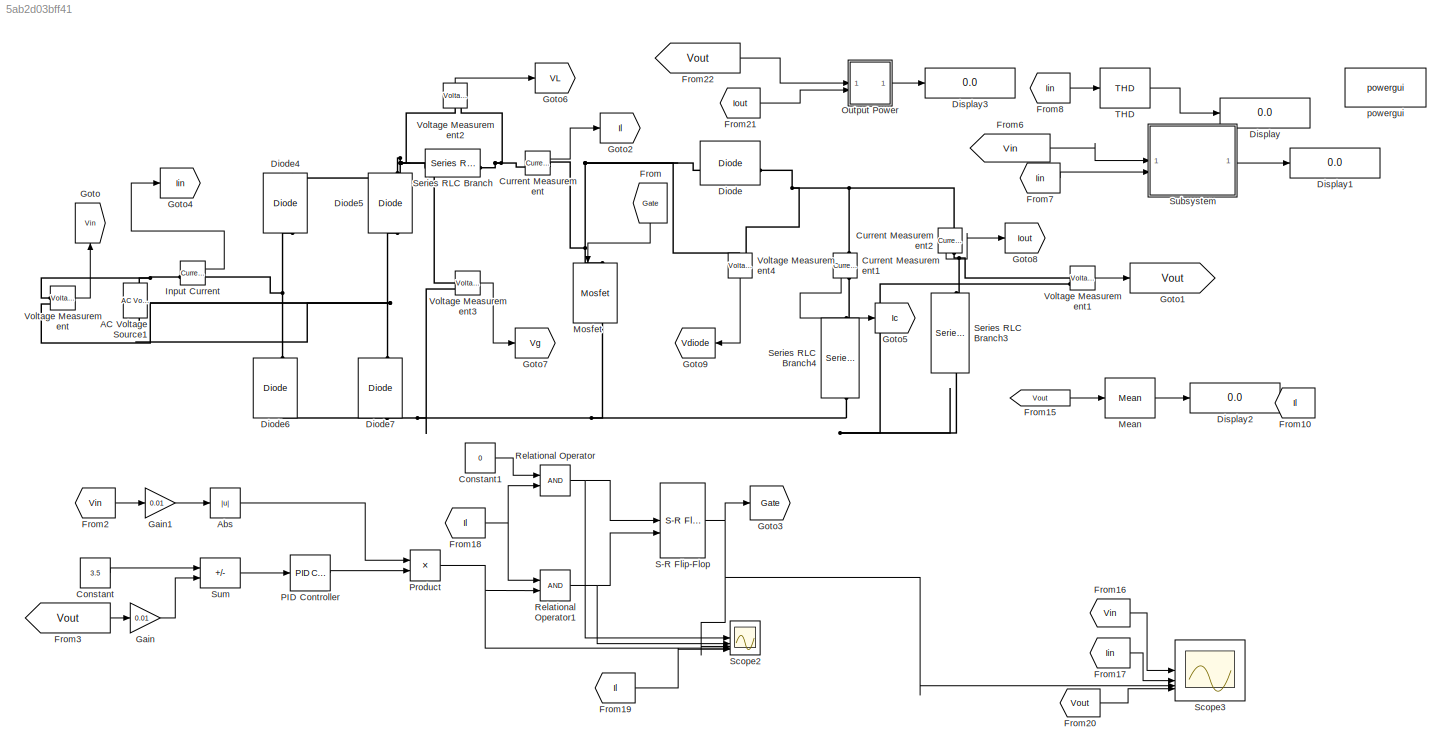
MODEL slx_5ab2d03bff41
KIND model
CONFIG AbsTol = auto
CONFIG EnableMultiTasking = off
CONFIG FixedStep = auto
CONFIG MaxStep = auto
CONFIG MinStep = auto
CONFIG RelTol = 1e-3
CONFIG SampleTimeConstraint = Unconstrained
CONFIG SolverName = VariableStepAuto
CONFIG StartTime = 0.0
CONFIG StopTime = 0.3
BLOCK [Reference] AC Voltage Source1  REF=spsACVoltageSourceLib/AC Voltage Source
  LibrarySourceBlock = sps_lib/Sources/AC Voltage Source
  SourceBlock = spsACVoltageSourceLib/AC Voltage Source
  SourceType = AC Voltage Source
BLOCK [Abs] Abs
  SaturateOnIntegerOverflow = off
BLOCK [Constant] Constant
  Value = 3.5
BLOCK [Constant] Constant1
  Value = 0
BLOCK [Reference] Current Measurement  REF=spsCurrentMeasurementLib/Current Measurement
  LibrarySourceBlock = sps_lib/Sensors and Measurements/Current Measurement
  SourceBlock = spsCurrentMeasurementLib/Current Measurement
  SourceType = Current Measurement
  UserDataPersistent = on
BLOCK [Reference] Current Measurement1  REF=spsCurrentMeasurementLib/Current Measurement
  LibrarySourceBlock = sps_lib/Sensors and Measurements/Current Measurement
  NameLocation = left
  SourceBlock = spsCurrentMeasurementLib/Current Measurement
  SourceType = Current Measurement
  UserDataPersistent = on
BLOCK [Reference] Current Measurement2  REF=spsCurrentMeasurementLib/Current Measurement
  LibrarySourceBlock = sps_lib/Sensors and Measurements/Current Measurement
  NameLocation = left
  SourceBlock = spsCurrentMeasurementLib/Current Measurement
  SourceType = Current Measurement
  UserDataPersistent = on
BLOCK [Reference] Diode  REF=spsDiodeLib/Diode
  LibrarySourceBlock = sps_lib/Power Electronics/Diode
  SourceBlock = spsDiodeLib/Diode
  SourceType = Diode
BLOCK [Reference] Diode4  REF=spsDiodeLib/Diode
  LibrarySourceBlock = sps_lib/Power Electronics/Diode
  NameLocation = right
  SourceBlock = spsDiodeLib/Diode
  SourceType = Diode
BLOCK [Reference] Diode5  REF=spsDiodeLib/Diode
  LibrarySourceBlock = sps_lib/Power Electronics/Diode
  NameLocation = right
  SourceBlock = spsDiodeLib/Diode
  SourceType = Diode
BLOCK [Reference] Diode6  REF=spsDiodeLib/Diode
  LibrarySourceBlock = sps_lib/Power Electronics/Diode
  NameLocation = right
  SourceBlock = spsDiodeLib/Diode
  SourceType = Diode
BLOCK [Reference] Diode7  REF=spsDiodeLib/Diode
  LibrarySourceBlock = sps_lib/Power Electronics/Diode
  NameLocation = right
  SourceBlock = spsDiodeLib/Diode
  SourceType = Diode
BLOCK [Display] Display
  Decimation = 1
BLOCK [Display] Display1
  Decimation = 1
BLOCK [Display] Display2
  Decimation = 1
BLOCK [Display] Display3
  Decimation = 1
BLOCK [From] From
  GotoTag = Gate
  NameLocation = left
BLOCK [From] From10
  Commented = on
  GotoTag = Il
BLOCK [From] From15
  GotoTag = Vout
BLOCK [From] From16
  GotoTag = Vin
BLOCK [From] From17
  GotoTag = Iin
BLOCK [From] From18
  GotoTag = Il
BLOCK [From] From19
  GotoTag = Il
BLOCK [From] From2
  GotoTag = Vin
BLOCK [From] From20
  GotoTag = Vout
BLOCK [From] From21
  GotoTag = Iout
BLOCK [From] From22
  GotoTag = Vout
BLOCK [From] From3
  GotoTag = Vout
BLOCK [From] From6
  GotoTag = Vin
BLOCK [From] From7
  GotoTag = Iin
BLOCK [From] From8
  GotoTag = Iin
BLOCK [Gain] Gain
  Gain = 0.01
BLOCK [Gain] Gain1
  Gain = 0.01
BLOCK [Goto] Goto
  GotoTag = Vin
  NameLocation = right
BLOCK [Goto] Goto1
  GotoTag = Vout
BLOCK [Goto] Goto2
  GotoTag = Il
BLOCK [Goto] Goto3
  GotoTag = Gate
BLOCK [Goto] Goto4
  GotoTag = Iin
BLOCK [Goto] Goto5
  GotoTag = Ic
BLOCK [Goto] Goto6
  GotoTag = VL
BLOCK [Goto] Goto7
  GotoTag = Vg
BLOCK [Goto] Goto8
  GotoTag = Iout
BLOCK [Goto] Goto9
  GotoTag = Vdiode
  NameLocation = top
BLOCK [Reference] Input Current  REF=spsCurrentMeasurementLib/Current Measurement
  LibrarySourceBlock = sps_lib/Sensors and Measurements/Current Measurement
  SourceBlock = spsCurrentMeasurementLib/Current Measurement
  SourceType = Current Measurement
  UserDataPersistent = on
BLOCK [Reference] Mean  REF=spsMeanLib/Mean
  LibrarySourceBlock = sps_lib/Sensors and Measurements/Mean
  SourceBlock = spsMeanLib/Mean
  SourceType = Mean
BLOCK [Reference] Mosfet  REF=spsMosfetLib/Mosfet
  LibrarySourceBlock = sps_lib/Power Electronics/Mosfet
  NameLocation = left
  SourceBlock = spsMosfetLib/Mosfet
  SourceType = Mosfet
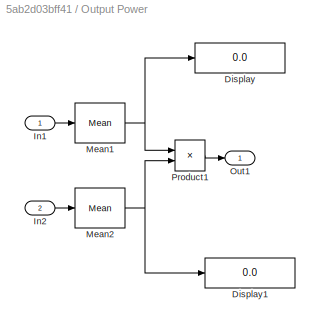
BLOCK [SubSystem] Output Power
BLOCK [Display] Output Power/Display
  Decimation = 1
BLOCK [Display] Output Power/Display1
  Decimation = 1
BLOCK [Inport] Output Power/In1
BLOCK [Inport] Output Power/In2
  Port = 2
BLOCK [Reference] Output Power/Mean1  REF=spsMeanLib/Mean
  LibrarySourceBlock = sps_lib/Sensors and Measurements/Mean
  SourceBlock = spsMeanLib/Mean
  SourceType = Mean
BLOCK [Reference] Output Power/Mean2  REF=spsMeanLib/Mean
  LibrarySourceBlock = sps_lib/Sensors and Measurements/Mean
  SourceBlock = spsMeanLib/Mean
  SourceType = Mean
BLOCK [Outport] Output Power/Out1
BLOCK [Product] Output Power/Product1
BLOCK [Reference] PID Controller  REF=slpidlib/PID Controller
  LibrarySourceBlock = simulink/Continuous/PID Controller
  SourceBlock = slpidlib/PID Controller
  SourceType = PID 1dof
BLOCK [Product] Product
BLOCK [RelationalOperator] Relational Operator
  InputSameDT = off
  OutDataTypeStr = boolean
  RndMeth = Simplest
BLOCK [RelationalOperator] Relational Operator1
  InputSameDT = off
  OutDataTypeStr = boolean
  RndMeth = Simplest
BLOCK [Reference] S-R Flip-Flop  REF=simulink_extras/Flip Flops/S-R
Flip-Flop
  SourceBlock = simulink_extras/Flip Flops/S-R\nFlip-Flop
  SourceType = SRFlipFlop
BLOCK [Scope] Scope2
  Floating = off
  NumInputPorts = 5
  ScopeSpecificationString = Simulink.scopes.TimeScopeBlockCfg('CurrentConfiguration', extmgr.ConfigurationSet(extmgr.Configuration('Core','General UI',true),extmgr.Configuration('Core','Source UI',true),extmgr.Configuration('Sources','WiredSimulink',true,'DataLoggingVariableName','ScopeData3'),extmgr.Configuration('Visuals','Time Domain',true,'SerializedDisplays',{struct('MinYLimReal','-0.47641','MaxYLimReal','4.15366','YLab...<+2258ch>
BLOCK [Scope] Scope3
  Floating = off
  NumInputPorts = 4
  ScopeSpecificationString = Simulink.scopes.TimeScopeBlockCfg('CurrentConfiguration', extmgr.ConfigurationSet(extmgr.Configuration('Core','General UI',true),extmgr.Configuration('Core','Source UI',true),extmgr.Configuration('Sources','WiredSimulink',true),extmgr.Configuration('Visuals','Time Domain',true,'SerializedDisplays',{struct('MinYLimReal','-41.51354','MaxYLimReal','29.41043','YLabelReal','','MinYLimMag','0.00000','Ma...<+1629ch>
BLOCK [Reference] Series RLC Branch  REF=spsSeriesRLCBranchLib/Series RLC Branch
  LibrarySourceBlock = sps_lib/Passives/Series RLC Branch
  SourceBlock = spsSeriesRLCBranchLib/Series RLC Branch
  SourceType = Series RLC Branch
BLOCK [Reference] Series RLC Branch3  REF=spsSeriesRLCBranchLib/Series RLC Branch
  LibrarySourceBlock = sps_lib/Passives/Series RLC Branch
  NameLocation = left
  SourceBlock = spsSeriesRLCBranchLib/Series RLC Branch
  SourceType = Series RLC Branch
BLOCK [Reference] Series RLC Branch4  REF=spsSeriesRLCBranchLib/Series RLC Branch
  LibrarySourceBlock = sps_lib/Passives/Series RLC Branch
  NameLocation = left
  SourceBlock = spsSeriesRLCBranchLib/Series RLC Branch
  SourceType = Series RLC Branch
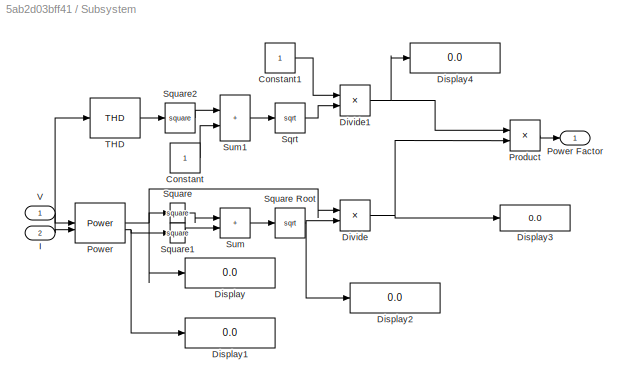
BLOCK [SubSystem] Subsystem
BLOCK [Constant] Subsystem/Constant
  SampleTime = -1
BLOCK [Constant] Subsystem/Constant1
  SampleTime = -1
BLOCK [Display] Subsystem/Display
  Decimation = 1
BLOCK [Display] Subsystem/Display1
  Decimation = 1
BLOCK [Display] Subsystem/Display2
  Decimation = 1
BLOCK [Display] Subsystem/Display3
  Decimation = 1
BLOCK [Display] Subsystem/Display4
  Decimation = 1
BLOCK [Product] Subsystem/Divide
  Inputs = */
BLOCK [Product] Subsystem/Divide1
  Inputs = */
BLOCK [Inport] Subsystem/I
  Port = 2
BLOCK [Reference] Subsystem/Power  REF=spsPowerLib/Power
  LibrarySourceBlock = sps_lib/Sensors and Measurements/Power
  SourceBlock = spsPowerLib/Power
  SourceType = Power
BLOCK [Outport] Subsystem/Power Factor
BLOCK [Product] Subsystem/Product
BLOCK [Sqrt] Subsystem/Sqrt
BLOCK [Math] Subsystem/Square
  Operator = square
BLOCK [Sqrt] Subsystem/Square Root
BLOCK [Math] Subsystem/Square1
  Operator = square
BLOCK [Math] Subsystem/Square2
  Operator = square
BLOCK [Sum] Subsystem/Sum
  IconShape = rectangular
  Inputs = |++
BLOCK [Sum] Subsystem/Sum1
  IconShape = rectangular
  Inputs = |++
BLOCK [Reference] Subsystem/THD  REF=spsTHDLib/THD
  LibrarySourceBlock = sps_lib/Sensors and Measurements/THD
  SourceBlock = spsTHDLib/THD
  SourceType = THD
BLOCK [Inport] Subsystem/V
BLOCK [Sum] Sum
  IconShape = rectangular
  Inputs = |+-
BLOCK [Reference] THD  REF=spsTHDLib/THD
  LibrarySourceBlock = sps_lib/Sensors and Measurements/THD
  SourceBlock = spsTHDLib/THD
  SourceType = THD
BLOCK [Reference] Voltage Measurement  REF=spsVoltageMeasurementLib/Voltage Measurement
  LibrarySourceBlock = sps_lib/Sensors and Measurements/Voltage Measurement
  SourceBlock = spsVoltageMeasurementLib/Voltage Measurement
  SourceType = Voltage Measurement
  UserDataPersistent = on
BLOCK [Reference] Voltage Measurement1  REF=spsVoltageMeasurementLib/Voltage Measurement
  LibrarySourceBlock = sps_lib/Sensors and Measurements/Voltage Measurement
  SourceBlock = spsVoltageMeasurementLib/Voltage Measurement
  SourceType = Voltage Measurement
  UserDataPersistent = on
BLOCK [Reference] Voltage Measurement2  REF=spsVoltageMeasurementLib/Voltage Measurement
  LibrarySourceBlock = sps_lib/Sensors and Measurements/Voltage Measurement
  NameLocation = right
  SourceBlock = spsVoltageMeasurementLib/Voltage Measurement
  SourceType = Voltage Measurement
  UserDataPersistent = on
BLOCK [Reference] Voltage Measurement3  REF=spsVoltageMeasurementLib/Voltage Measurement
  LibrarySourceBlock = sps_lib/Sensors and Measurements/Voltage Measurement
  SourceBlock = spsVoltageMeasurementLib/Voltage Measurement
  SourceType = Voltage Measurement
  UserDataPersistent = on
BLOCK [Reference] Voltage Measurement4  REF=spsVoltageMeasurementLib/Voltage Measurement
  LibrarySourceBlock = sps_lib/Sensors and Measurements/Voltage Measurement
  NameLocation = left
  SourceBlock = spsVoltageMeasurementLib/Voltage Measurement
  SourceType = Voltage Measurement
  UserDataPersistent = on
BLOCK [Reference] powergui  REF=sps_lib/powergui
  LibrarySourceBlock = sps_lib/powergui
  Priority = 1
  SourceBlock = sps_lib/powergui
  SourceType = PSB option menu block
LINE Abs:1 -> Product:1
LINE Constant1:1 -> Relational Operator:1
LINE Constant:1 -> Sum:1
LINE Current Measurement1:1 -> Goto5:1
LINE Current Measurement2:1 -> Goto8:1
LINE Current Measurement:1 -> Goto2:1
LINE From15:1 -> Mean:1
LINE From16:1 -> Scope3:1
LINE From17:1 -> Scope3:2
NET From18:1 -> Relational Operator1:1, Relational Operator:2
LINE From19:1 -> Scope2:5
LINE From20:1 -> Scope3:4
LINE From21:1 -> Output Power:2
LINE From22:1 -> Output Power:1
LINE From2:1 -> Gain1:1
LINE From3:1 -> Gain:1
LINE From6:1 -> Subsystem:1
LINE From7:1 -> Subsystem:2
LINE From8:1 -> THD:1
LINE From:1 -> Mosfet:1
LINE Gain1:1 -> Abs:1
LINE Gain:1 -> Sum:2
LINE Input Current:1 -> Goto4:1
LINE Mean:1 -> Display2:1
LINE Output Power/In1:1 -> Output Power/Mean1:1
LINE Output Power/In2:1 -> Output Power/Mean2:1
NET Output Power/Mean1:1 -> Output Power/Display:1, Output Power/Product1:1
NET Output Power/Mean2:1 -> Output Power/Display1:1, Output Power/Product1:2
LINE Output Power/Product1:1 -> Output Power/Out1:1
LINE Output Power:1 -> Display3:1
LINE PID Controller:1 -> Product:2
NET Product:1 -> Relational Operator1:2, Scope2:4
NET Relational Operator1:1 -> S-R Flip-Flop:2, Scope2:2
NET Relational Operator:1 -> S-R Flip-Flop:1, Scope2:1
NET S-R Flip-Flop:1 -> Goto3:1, Scope2:3, Scope3:3
LINE Subsystem/Constant1:1 -> Subsystem/Divide1:1
LINE Subsystem/Constant:1 -> Subsystem/Sum1:2
NET Subsystem/Divide1:1 -> Subsystem/Display4:1, Subsystem/Product:1
NET Subsystem/Divide:1 -> Subsystem/Display3:1, Subsystem/Product:2
NET Subsystem/I:1 -> Subsystem/Power:2, Subsystem/THD:1
NET Subsystem/Power:1 -> Subsystem/Display:1, Subsystem/Divide:1, Subsystem/Square:1
NET Subsystem/Power:2 -> Subsystem/Display1:1, Subsystem/Square1:1
LINE Subsystem/Product:1 -> Subsystem/Power Factor:1
LINE Subsystem/Sqrt:1 -> Subsystem/Divide1:2
NET Subsystem/Square Root:1 -> Subsystem/Display2:1, Subsystem/Divide:2
LINE Subsystem/Square1:1 -> Subsystem/Sum:2
LINE Subsystem/Square2:1 -> Subsystem/Sum1:1
LINE Subsystem/Square:1 -> Subsystem/Sum:1
LINE Subsystem/Sum1:1 -> Subsystem/Sqrt:1
LINE Subsystem/Sum:1 -> Subsystem/Square Root:1
LINE Subsystem/THD:1 -> Subsystem/Square2:1
LINE Subsystem/V:1 -> Subsystem/Power:1
LINE Subsystem:1 -> Display1:1
LINE Sum:1 -> PID Controller:1
LINE THD:1 -> Display:1
LINE Voltage Measurement1:1 -> Goto1:1
LINE Voltage Measurement2:1 -> Goto6:1
LINE Voltage Measurement3:1 -> Goto7:1
LINE Voltage Measurement4:1 -> Goto9:1
LINE Voltage Measurement:1 -> Goto:1
PNET net1: AC Voltage Source1:LConn1 -- Diode5:LConn1 -- Diode7:RConn1 -- Voltage Measurement:LConn2
PNET net2: AC Voltage Source1:RConn1 -- Input Current:LConn1 -- Voltage Measurement:LConn1
PNET net3: Current Measurement1:LConn1 -- Current Measurement2:LConn1 -- Diode:RConn1 -- Voltage Measurement4:LConn2
PLINE Current Measurement1:RConn1 -- Series RLC Branch4:LConn1
PNET net4: Current Measurement2:RConn1 -- Series RLC Branch3:LConn1 -- Voltage Measurement1:LConn1
PNET net5: Current Measurement:LConn1 -- Series RLC Branch:RConn1 -- Voltage Measurement2:LConn2
PNET net6: Current Measurement:RConn1 -- Diode:LConn1 -- Mosfet:LConn1 -- Voltage Measurement4:LConn1
PNET net7: Diode4:LConn1 -- Diode6:RConn1 -- Input Current:RConn1
PNET net8: Diode4:RConn1 -- Diode5:RConn1 -- Series RLC Branch:LConn1 -- Voltage Measurement2:LConn1 -- Voltage Measurement3:LConn1
PNET net9: Diode6:LConn1 -- Diode7:LConn1 -- Mosfet:RConn1 -- Series RLC Branch3:RConn1 -- Series RLC Branch4:RConn1 -- Voltage Measurement1:LConn2 -- Voltage Measurement3:LConn2
note: NET lines group one-source signal fan-out (src -> all destinations, sorted); 1:1 wires keep LINE; PNET lines group multi-terminal physical nets as a canonical sorted terminal list (undirected conserving connections); 2-terminal nets keep the pairwise PLINE form
